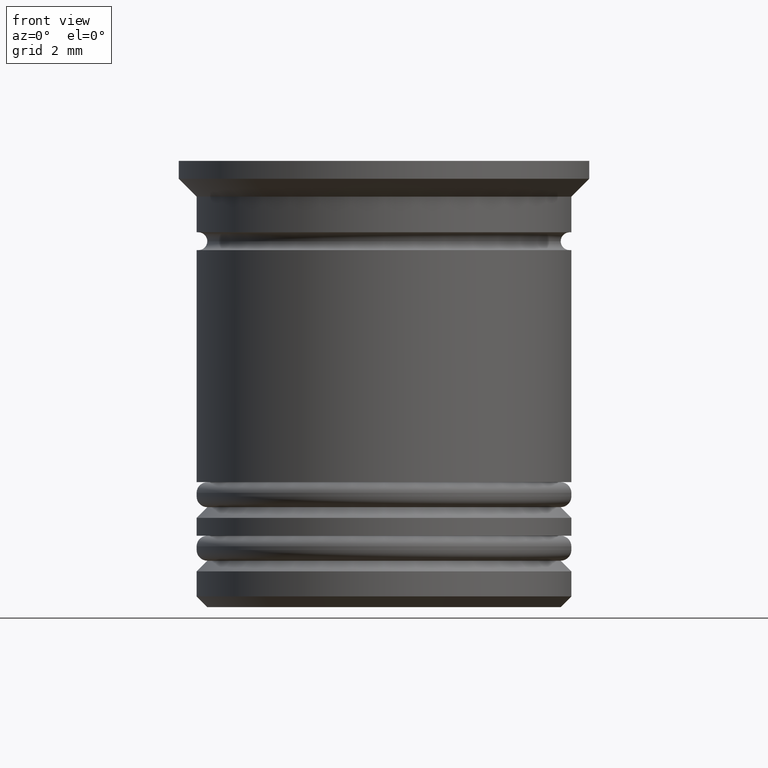
[diagram: clean part render]
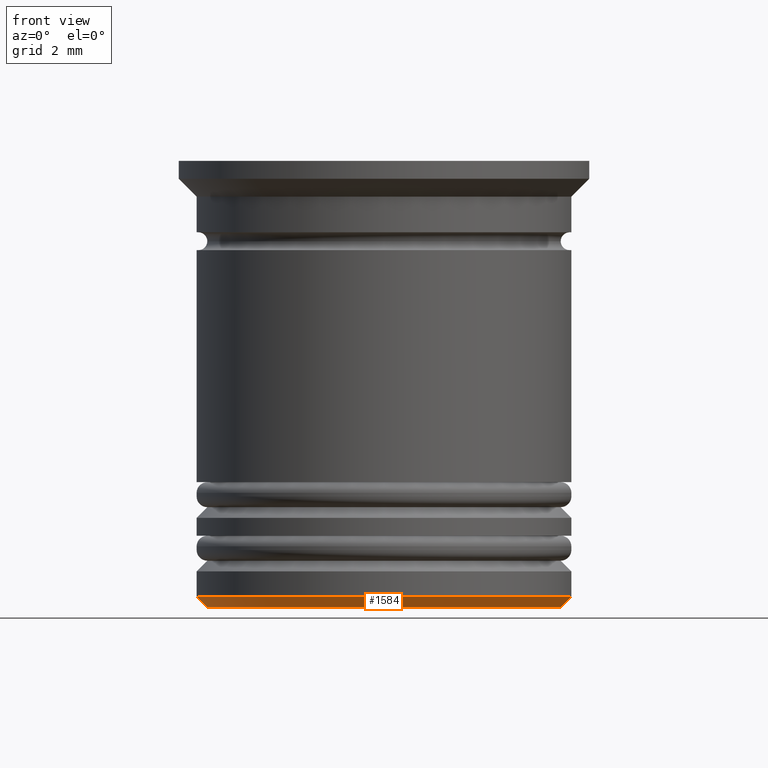
[diagram: same view with one face highlighted and labeled with its STEP entity id]
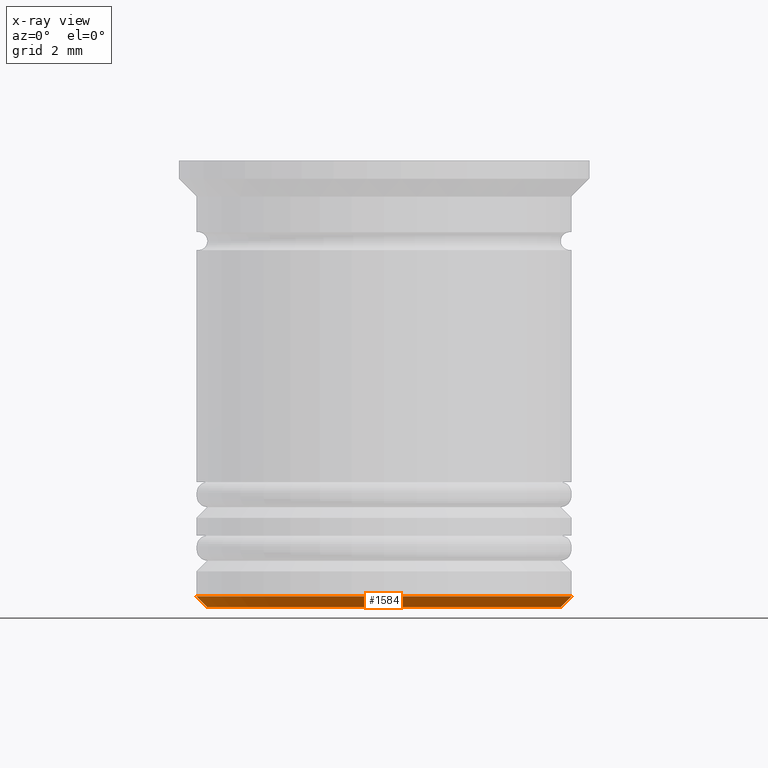
[diagram: x-ray of the same camera — body ghosted, the highlighted face saturated]
A machine part, front view. The second image highlights one B-rep face of the part: STEP entity #1584.
The next image is the same camera in x-ray: the body ghosted, the highlighted face saturated — about 0% of this face is hidden behind the body in this view.
In plain terms, the highlighted conical surface has half-angle 45 deg.
Its self-contained STEP definition (entity closure, byte-faithful):
#50 = CARTESIAN_POINT ( 'NONE',  ( 0.000000000000000000, 0.000000000000000000, -12.50000000000000000 ) ) ;
#69 = DIRECTION ( 'NONE',  ( 0.000000000000000000, 0.000000000000000000, -1.000000000000000000 ) ) ;
#84 = EDGE_CURVE ( 'NONE', #599, #926, #1778, .T. ) ;
#129 = AXIS2_PLACEMENT_3D ( 'NONE', #50, #69, #1625 ) ;
#146 = VECTOR ( 'NONE', #1314, 1000.000000000000000 ) ;
#180 = CIRCLE ( 'NONE', #1312, 5.250000000000000888 ) ;
#241 = CONICAL_SURFACE ( 'NONE', #1920, 5.250000000000000888, 0.7853981633974511656 ) ;
#274 = EDGE_CURVE ( 'NONE', #599, #1386, #983, .T. ) ;
#344 = DIRECTION ( 'NONE',  ( -0.000000000000000000, -0.000000000000000000, 1.000000000000000000 ) ) ;
#599 = VERTEX_POINT ( 'NONE', #1563 ) ;
#662 = CARTESIAN_POINT ( 'NONE',  ( 0.000000000000000000, 0.000000000000000000, -12.19999999999999751 ) ) ;
#670 = CARTESIAN_POINT ( 'NONE',  ( -5.250000000000000888, 6.429395695523605139E-16, -12.19999999999999751 ) ) ;
#697 = CARTESIAN_POINT ( 'NONE',  ( -5.250000000000000888, 6.429395695523605139E-16, -12.19999999999999751 ) ) ;
#701 = FACE_OUTER_BOUND ( 'NONE', #1438, .T. ) ;
#924 = EDGE_CURVE ( 'NONE', #959, #1386, #180, .T. ) ;
#926 = VERTEX_POINT ( 'NONE', #987 ) ;
#959 = VERTEX_POINT ( 'NONE', #670 ) ;
#983 = LINE ( 'NONE', #1105, #1033 ) ;
#987 = CARTESIAN_POINT ( 'NONE',  ( -4.949999999999995737, 6.245698675651499853E-16, -12.50000000000000000 ) ) ;
#997 = EDGE_CURVE ( 'NONE', #926, #959, #1276, .T. ) ;
#1033 = VECTOR ( 'NONE', #1715, 1000.000000000000000 ) ;
#1075 = ORIENTED_EDGE ( 'NONE', *, *, #924, .F. ) ;
#1105 = CARTESIAN_POINT ( 'NONE',  ( 5.250000000000000888, 0.000000000000000000, -12.19999999999999751 ) ) ;
#1133 = DIRECTION ( 'NONE',  ( 1.000000000000000000, 0.000000000000000000, 0.000000000000000000 ) ) ;
#1276 = LINE ( 'NONE', #697, #146 ) ;
#1279 = DIRECTION ( 'NONE',  ( -0.000000000000000000, -0.000000000000000000, 1.000000000000000000 ) ) ;
#1312 = AXIS2_PLACEMENT_3D ( 'NONE', #1762, #344, #1450 ) ;
#1314 = DIRECTION ( 'NONE',  ( -0.7071067811865495711, 8.659560562354957510E-17, 0.7071067811865454633 ) ) ;
#1386 = VERTEX_POINT ( 'NONE', #1690 ) ;
#1438 = EDGE_LOOP ( 'NONE', ( #1564, #1660, #1884, #1075 ) ) ;
#1450 = DIRECTION ( 'NONE',  ( -1.000000000000000000, 0.000000000000000000, 0.000000000000000000 ) ) ;
#1563 = CARTESIAN_POINT ( 'NONE',  ( 4.949999999999995737, 0.000000000000000000, -12.50000000000000000 ) ) ;
#1564 = ORIENTED_EDGE ( 'NONE', *, *, #997, .F. ) ;
#1584 = ADVANCED_FACE ( 'NONE', ( #701 ), #241, .T. ) ;
#1625 = DIRECTION ( 'NONE',  ( -1.000000000000000000, 0.000000000000000000, 0.000000000000000000 ) ) ;
#1660 = ORIENTED_EDGE ( 'NONE', *, *, #84, .F. ) ;
#1690 = CARTESIAN_POINT ( 'NONE',  ( 5.250000000000000888, 0.000000000000000000, -12.19999999999999751 ) ) ;
#1715 = DIRECTION ( 'NONE',  ( 0.7071067811865495711, 0.000000000000000000, 0.7071067811865454633 ) ) ;
#1762 = CARTESIAN_POINT ( 'NONE',  ( 0.000000000000000000, 0.000000000000000000, -12.19999999999999751 ) ) ;
#1778 = CIRCLE ( 'NONE', #129, 4.949999999999995737 ) ;
#1884 = ORIENTED_EDGE ( 'NONE', *, *, #274, .T. ) ;
#1920 = AXIS2_PLACEMENT_3D ( 'NONE', #662, #1279, #1133 ) ;